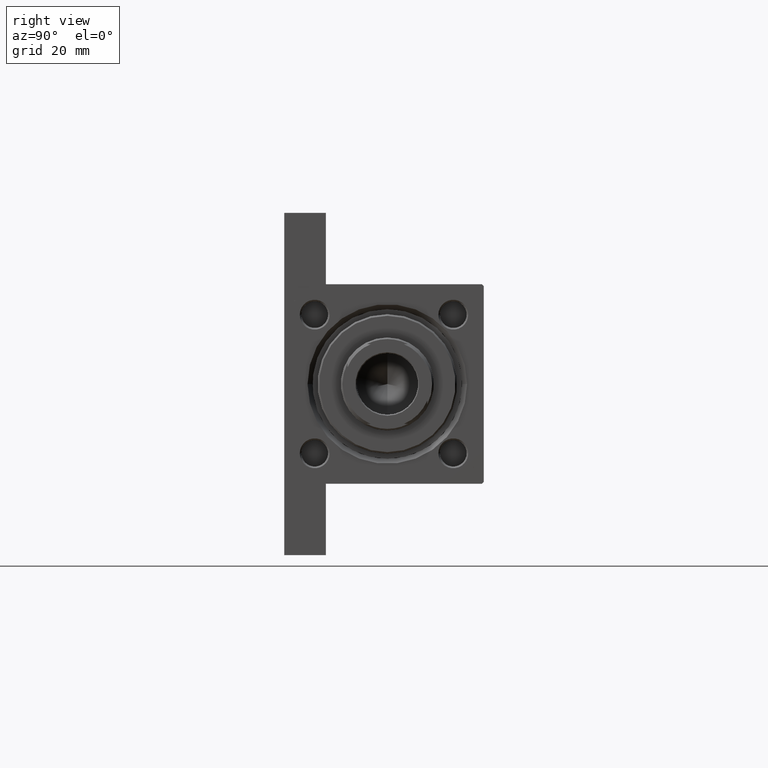
[diagram: clean part render]
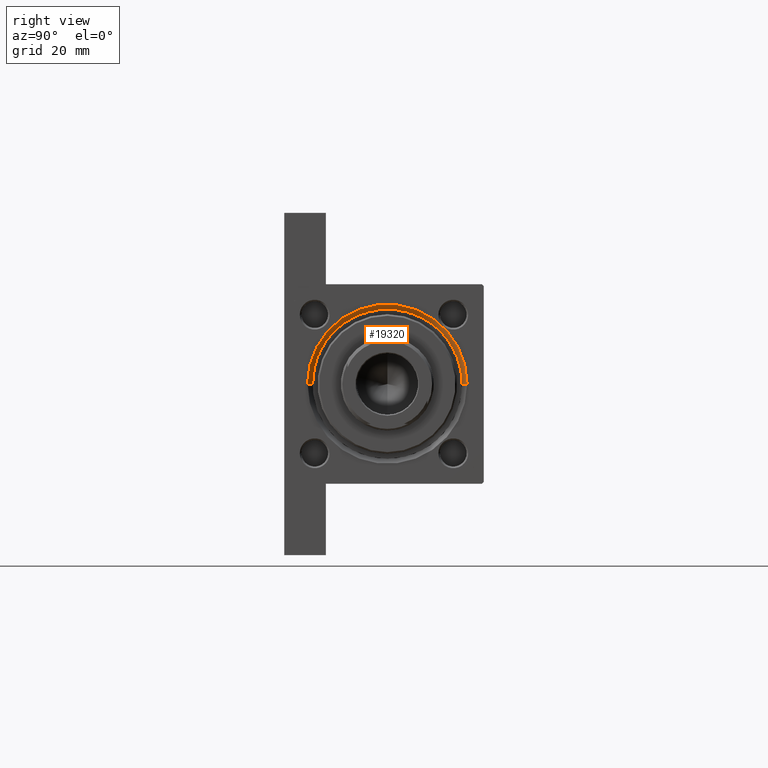
[diagram: same view with one face highlighted and labeled with its STEP entity id]
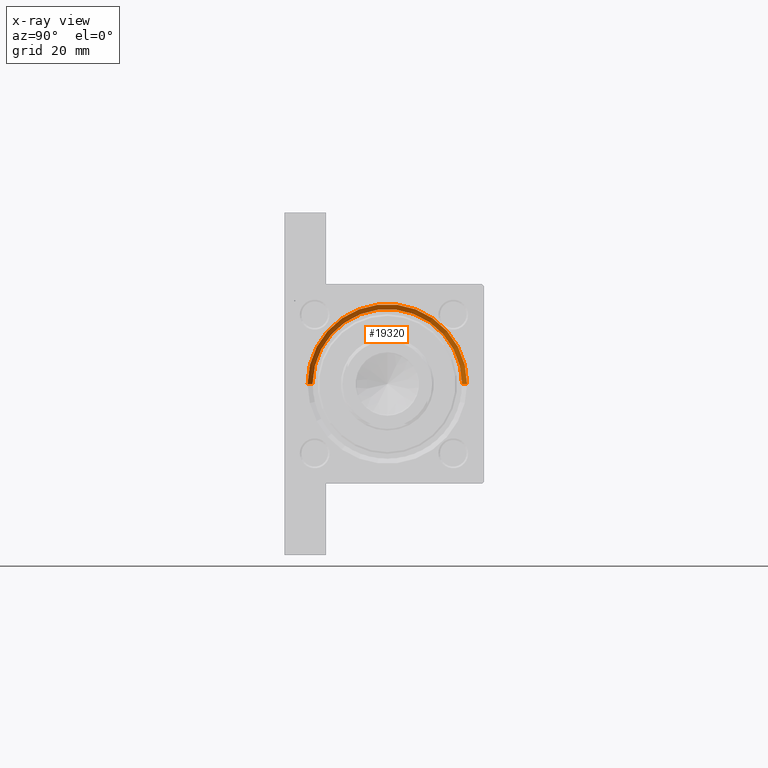
[diagram: x-ray of the same camera — body ghosted, the highlighted face saturated]
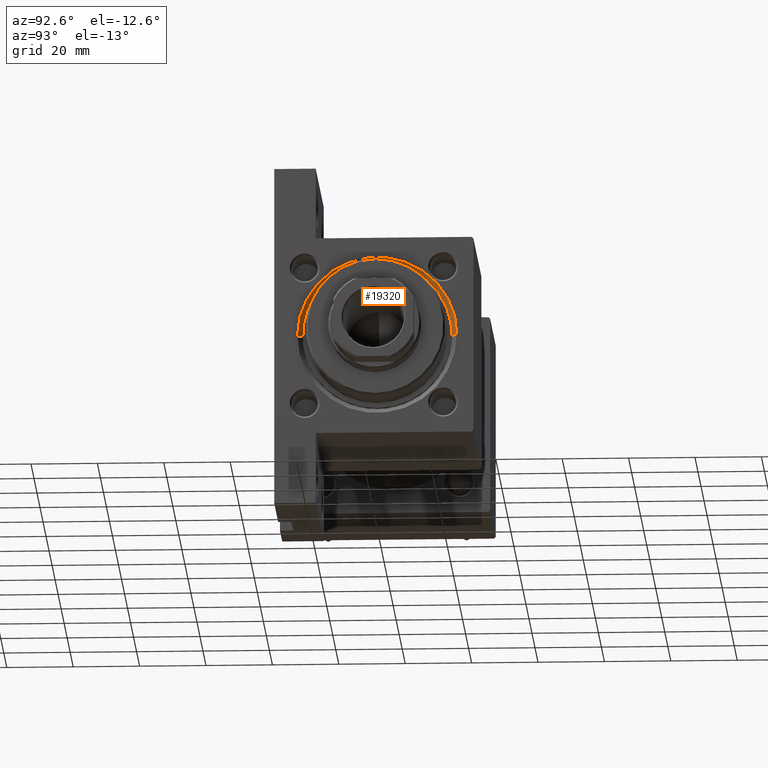
[diagram: same view with one face highlighted and labeled with its STEP entity id]
A machine part, right view. The second image highlights one B-rep face of the part: STEP entity #19320.
The next image is the same camera in x-ray: the body ghosted, the highlighted face saturated — about 0% of this face is hidden behind the body in this view.
A second angle (auxiliary view) of the same face is appended — the face is thin or edge-on in the first view.
In plain terms, the highlighted conical surface has half-angle 45 deg.
Its self-contained STEP definition (entity closure, byte-faithful):
#2300 = CARTESIAN_POINT ( 'NONE',  ( 146.4999999999999432, 0.000000000000000000, -21.49999999999999645 ) ) ;
#3701 = DIRECTION ( 'NONE',  ( 0.000000000000000000, 0.000000000000000000, -1.000000000000000000 ) ) ;
#3943 = DIRECTION ( 'NONE',  ( 1.000000000000000000, 0.000000000000000000, 0.000000000000000000 ) ) ;
#4406 = ORIENTED_EDGE ( 'NONE', *, *, #41709, .F. ) ;
#4630 = EDGE_CURVE ( 'NONE', #23465, #14950, #42282, .T. ) ;
#4747 = EDGE_CURVE ( 'NONE', #25023, #14950, #23161, .T. ) ;
#6881 = VECTOR ( 'NONE', #33783, 1000.000000000000000 ) ;
#7605 = CIRCLE ( 'NONE', #45353, 22.50000000000000355 ) ;
#11177 = CARTESIAN_POINT ( 'NONE',  ( 146.4999999999999432, 0.000000000000000000, 1.000000000000007772 ) ) ;
#12850 = CARTESIAN_POINT ( 'NONE',  ( 148.0000000000000000, 2.939152317953652628E-15, 25.00000000000004619 ) ) ;
#12939 = CARTESIAN_POINT ( 'NONE',  ( 148.0000000000000000, 0.000000000000000000, 1.000000000000007772 ) ) ;
#14950 = VERTEX_POINT ( 'NONE', #12850 ) ;
#15176 = VERTEX_POINT ( 'NONE', #46064 ) ;
#17566 = VECTOR ( 'NONE', #46910, 1000.000000000000000 ) ;
#17672 = ORIENTED_EDGE ( 'NONE', *, *, #30961, .F. ) ;
#18076 = CONICAL_SURFACE ( 'NONE', #24372, 22.50000000000000355, 0.7853981633974415066 ) ;
#18081 = DIRECTION ( 'NONE',  ( 0.000000000000000000, 0.000000000000000000, 1.000000000000000000 ) ) ;
#19320 = ADVANCED_FACE ( 'NONE', ( #37468 ), #18076, .F. ) ;
#19542 = EDGE_LOOP ( 'NONE', ( #4406, #32120, #29759, #17672 ) ) ;
#23161 = LINE ( 'NONE', #38213, #6881 ) ;
#23465 = VERTEX_POINT ( 'NONE', #28638 ) ;
#24372 = AXIS2_PLACEMENT_3D ( 'NONE', #25641, #3943, #3701 ) ;
#25023 = VERTEX_POINT ( 'NONE', #48272 ) ;
#25641 = CARTESIAN_POINT ( 'NONE',  ( 146.4999999999999432, 0.000000000000000000, 1.000000000000007772 ) ) ;
#28638 = CARTESIAN_POINT ( 'NONE',  ( 148.0000000000000000, 0.000000000000000000, -23.00000000000003197 ) ) ;
#29425 = DIRECTION ( 'NONE',  ( 1.000000000000000000, 0.000000000000000000, 0.000000000000000000 ) ) ;
#29725 = AXIS2_PLACEMENT_3D ( 'NONE', #12939, #31669, #35847 ) ;
#29759 = ORIENTED_EDGE ( 'NONE', *, *, #4630, .F. ) ;
#30961 = EDGE_CURVE ( 'NONE', #15176, #23465, #36061, .T. ) ;
#31669 = DIRECTION ( 'NONE',  ( -1.000000000000000000, 0.000000000000000000, -0.000000000000000000 ) ) ;
#32120 = ORIENTED_EDGE ( 'NONE', *, *, #4747, .T. ) ;
#33783 = DIRECTION ( 'NONE',  ( 0.7071067811865524577, 8.659560562354874926E-17, 0.7071067811865426878 ) ) ;
#35847 = DIRECTION ( 'NONE',  ( 0.000000000000000000, 0.000000000000000000, 1.000000000000000000 ) ) ;
#36061 = LINE ( 'NONE', #2300, #17566 ) ;
#37468 = FACE_OUTER_BOUND ( 'NONE', #19542, .T. ) ;
#38213 = CARTESIAN_POINT ( 'NONE',  ( 146.4999999999999432, 2.755455298081545172E-15, 23.50000000000001066 ) ) ;
#41709 = EDGE_CURVE ( 'NONE', #25023, #15176, #7605, .T. ) ;
#42282 = CIRCLE ( 'NONE', #29725, 24.00000000000003908 ) ;
#45353 = AXIS2_PLACEMENT_3D ( 'NONE', #11177, #29425, #18081 ) ;
#46064 = CARTESIAN_POINT ( 'NONE',  ( 146.4999999999999432, 0.000000000000000000, -21.49999999999999645 ) ) ;
#46910 = DIRECTION ( 'NONE',  ( 0.7071067811865524577, 0.000000000000000000, -0.7071067811865426878 ) ) ;
#48272 = CARTESIAN_POINT ( 'NONE',  ( 146.4999999999999432, 2.755455298081545172E-15, 23.50000000000001066 ) ) ;